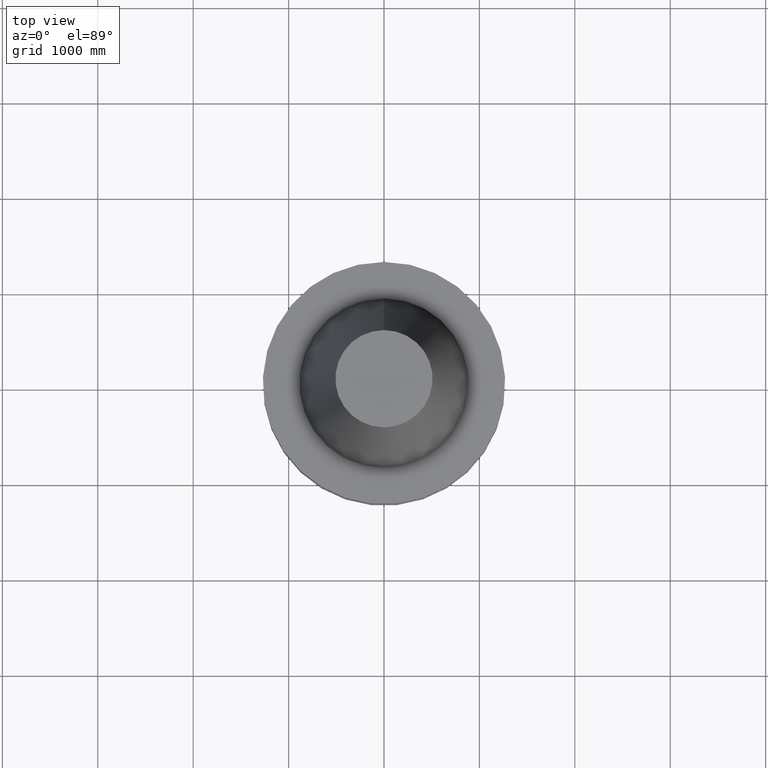
[diagram: clean part render]
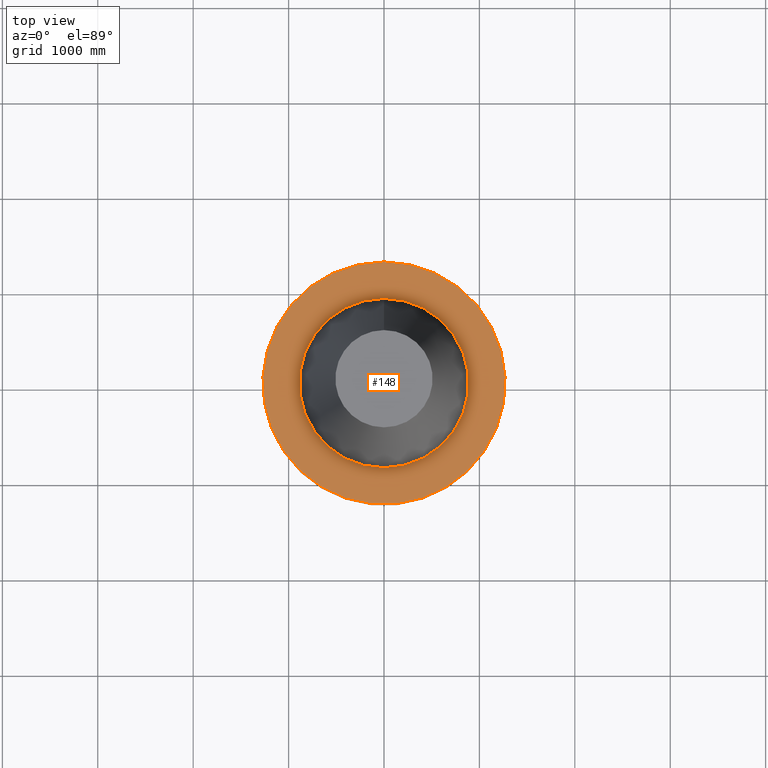
[diagram: same view with one face highlighted and labeled with its STEP entity id]
A machine part, top view. The second image highlights one B-rep face of the part: STEP entity #148.
In plain terms, the highlighted planar face has unit normal (-0, -0, 1).
Its self-contained STEP definition (entity closure, byte-faithful):
#82=EDGE_CURVE('Unnamed[1]',#212,#212,#213,.T.);
#106=EDGE_CURVE('Unnamed[1]',#248,#248,#249,.T.);
#148=ADVANCED_FACE('Unnamed[1]',(#312,#313),#314,.T.);
#212=VERTEX_POINT('',#391);
#213=CIRCLE('',#392,34.925);
#248=VERTEX_POINT('',#435);
#249=CIRCLE('',#436,50.0);
#312=FACE_BOUND('',#514,.T.);
#313=FACE_OUTER_BOUND('',#515,.T.);
#314=PLANE('',#516);
#391=CARTESIAN_POINT('',(9.18485099360511E-017,34.925,-1.5));
#392=AXIS2_PLACEMENT_3D('',#592,#593,#594);
#435=CARTESIAN_POINT('',(9.18485099360509E-017,50.0,-1.49999999999999));
#436=AXIS2_PLACEMENT_3D('',#631,#632,#633);
#514=EDGE_LOOP('',(#701));
#515=EDGE_LOOP('',(#702));
#516=AXIS2_PLACEMENT_3D('',#703,#704,#705);
#592=CARTESIAN_POINT('',(9.18485099360515E-017,1.58503636865388E-014,-1.5));
#593=DIRECTION('',(-6.12323399573677E-017,-2.72265846766536E-017,1.0));
#594=DIRECTION('',(-6.4943002195703E-033,1.0,2.72265846766536E-017));
#631=CARTESIAN_POINT('',(9.18485099360515E-017,1.58503636865388E-014,-1.5));
#632=DIRECTION('',(-6.12323399573677E-017,-2.72265846766671E-017,1.0));
#633=DIRECTION('',(-6.49430021956856E-033,1.0,2.72265846766671E-017));
#701=ORIENTED_EDGE('',*,*,#82,.F.);
#702=ORIENTED_EDGE('',*,*,#106,.T.);
#703=CARTESIAN_POINT('',(9.1848509936051E-017,42.4625,-1.49999999999999));
#704=DIRECTION('',(-6.12323399573677E-017,-1.22464679914735E-016,1.0));
#705=DIRECTION('',(-1.23259516440783E-032,1.0,1.22464679914735E-016));